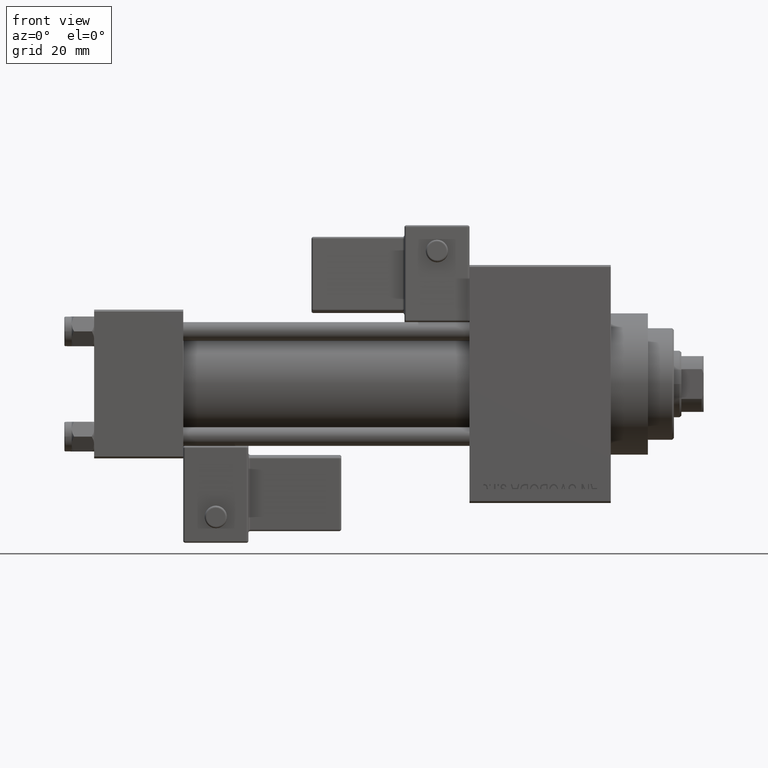
[diagram: clean part render]
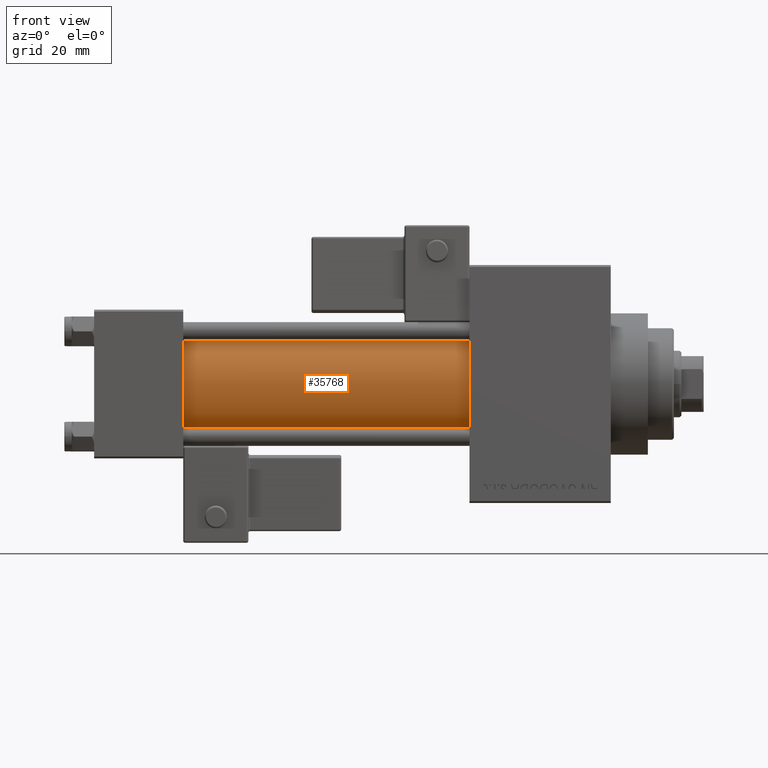
[diagram: same view with one face highlighted and labeled with its STEP entity id]
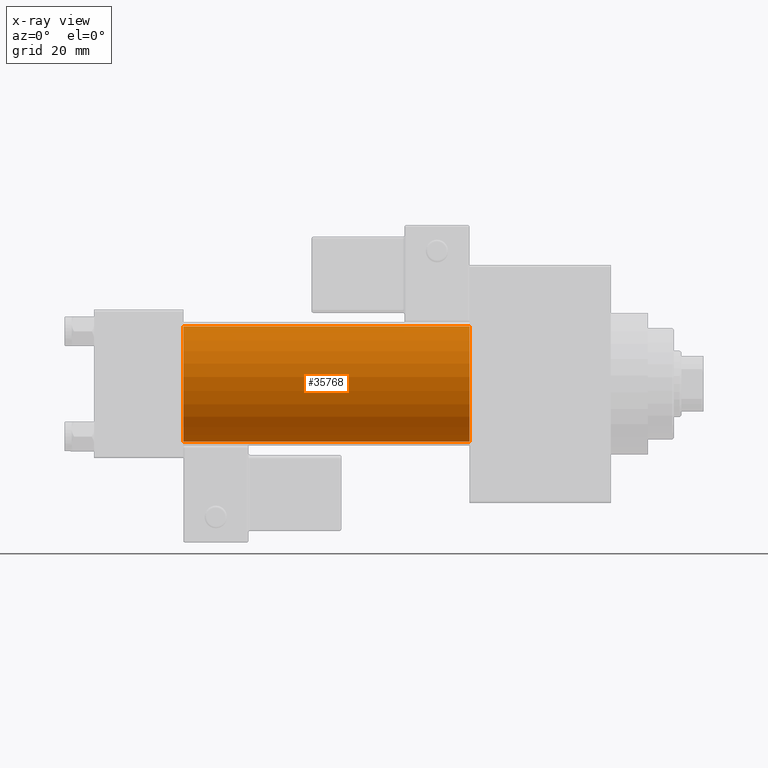
[diagram: x-ray of the same camera — body ghosted, the highlighted face saturated]
A machine part, front view. The second image highlights one B-rep face of the part: STEP entity #35768.
The next image is the same camera in x-ray: the body ghosted, the highlighted face saturated — about 0% of this face is hidden behind the body in this view.
In plain terms, the highlighted cylindrical surface (partial cylindrical patch) has radius 15.5 mm, axis along (-1, -0, -0).
Its self-contained STEP definition (entity closure, byte-faithful):
#359 = EDGE_CURVE ( 'NONE', #3971, #44404, #15837, .T. ) ;
#535 = EDGE_CURVE ( 'NONE', #3971, #13510, #27942, .T. ) ;
#3971 = VERTEX_POINT ( 'NONE', #45310 ) ;
#4687 = CARTESIAN_POINT ( 'NONE',  ( 23.99999999999999289, -2.602085213965210642E-15, 0.000000000000000000 ) ) ;
#6477 = ORIENTED_EDGE ( 'NONE', *, *, #535, .F. ) ;
#6666 = CARTESIAN_POINT ( 'NONE',  ( 101.0000000000000000, -7.038826752868131828E-16, -15.50000000000000000 ) ) ;
#11093 = DIRECTION ( 'NONE',  ( -1.000000000000000000, -0.000000000000000000, -0.000000000000000000 ) ) ;
#11203 = ORIENTED_EDGE ( 'NONE', *, *, #24065, .F. ) ;
#11458 = VERTEX_POINT ( 'NONE', #28086 ) ;
#12121 = EDGE_CURVE ( 'NONE', #44404, #11458, #36958, .T. ) ;
#12245 = EDGE_LOOP ( 'NONE', ( #11203, #6477, #23357, #45669 ) ) ;
#13510 = VERTEX_POINT ( 'NONE', #46632 ) ;
#15432 = AXIS2_PLACEMENT_3D ( 'NONE', #4687, #32408, #35169 ) ;
#15837 = LINE ( 'NONE', #42054, #35058 ) ;
#17305 = CARTESIAN_POINT ( 'NONE',  ( 101.0000000000000000, -2.602085213965210642E-15, 0.000000000000000000 ) ) ;
#18150 = LINE ( 'NONE', #6666, #24646 ) ;
#19778 = CARTESIAN_POINT ( 'NONE',  ( 23.99999999999999289, -2.602085213965210642E-15, 15.50000000000000000 ) ) ;
#20957 = AXIS2_PLACEMENT_3D ( 'NONE', #22780, #37491, #26285 ) ;
#22780 = CARTESIAN_POINT ( 'NONE',  ( 101.0000000000000000, -2.602085213965210642E-15, 0.000000000000000000 ) ) ;
#23357 = ORIENTED_EDGE ( 'NONE', *, *, #359, .T. ) ;
#24065 = EDGE_CURVE ( 'NONE', #13510, #11458, #18150, .T. ) ;
#24646 = VECTOR ( 'NONE', #26153, 1000.000000000000000 ) ;
#26153 = DIRECTION ( 'NONE',  ( -1.000000000000000000, -0.000000000000000000, -0.000000000000000000 ) ) ;
#26285 = DIRECTION ( 'NONE',  ( 0.000000000000000000, 0.000000000000000000, 1.000000000000000000 ) ) ;
#27942 = CIRCLE ( 'NONE', #41452, 15.50000000000000000 ) ;
#28086 = CARTESIAN_POINT ( 'NONE',  ( 23.99999999999999289, -7.038826752868131828E-16, -15.50000000000000000 ) ) ;
#29304 = DIRECTION ( 'NONE',  ( 1.000000000000000000, 0.000000000000000000, 0.000000000000000000 ) ) ;
#32408 = DIRECTION ( 'NONE',  ( 1.000000000000000000, 0.000000000000000000, 0.000000000000000000 ) ) ;
#35058 = VECTOR ( 'NONE', #11093, 1000.000000000000000 ) ;
#35169 = DIRECTION ( 'NONE',  ( 0.000000000000000000, 0.000000000000000000, 1.000000000000000000 ) ) ;
#35768 = ADVANCED_FACE ( 'NONE', ( #49213 ), #42232, .T. ) ;
#36958 = CIRCLE ( 'NONE', #15432, 15.50000000000000000 ) ;
#37491 = DIRECTION ( 'NONE',  ( -1.000000000000000000, -0.000000000000000000, -0.000000000000000000 ) ) ;
#40275 = DIRECTION ( 'NONE',  ( 0.000000000000000000, 0.000000000000000000, -1.000000000000000000 ) ) ;
#41452 = AXIS2_PLACEMENT_3D ( 'NONE', #17305, #29304, #40275 ) ;
#42054 = CARTESIAN_POINT ( 'NONE',  ( 101.0000000000000000, -2.602085213965210642E-15, 15.50000000000000000 ) ) ;
#42232 = CYLINDRICAL_SURFACE ( 'NONE', #20957, 15.50000000000000000 ) ;
#44404 = VERTEX_POINT ( 'NONE', #19778 ) ;
#45310 = CARTESIAN_POINT ( 'NONE',  ( 101.0000000000000000, -2.602085213965210642E-15, 15.50000000000000000 ) ) ;
#45669 = ORIENTED_EDGE ( 'NONE', *, *, #12121, .T. ) ;
#46632 = CARTESIAN_POINT ( 'NONE',  ( 101.0000000000000000, -7.038826752868131828E-16, -15.50000000000000000 ) ) ;
#49213 = FACE_OUTER_BOUND ( 'NONE', #12245, .T. ) ;